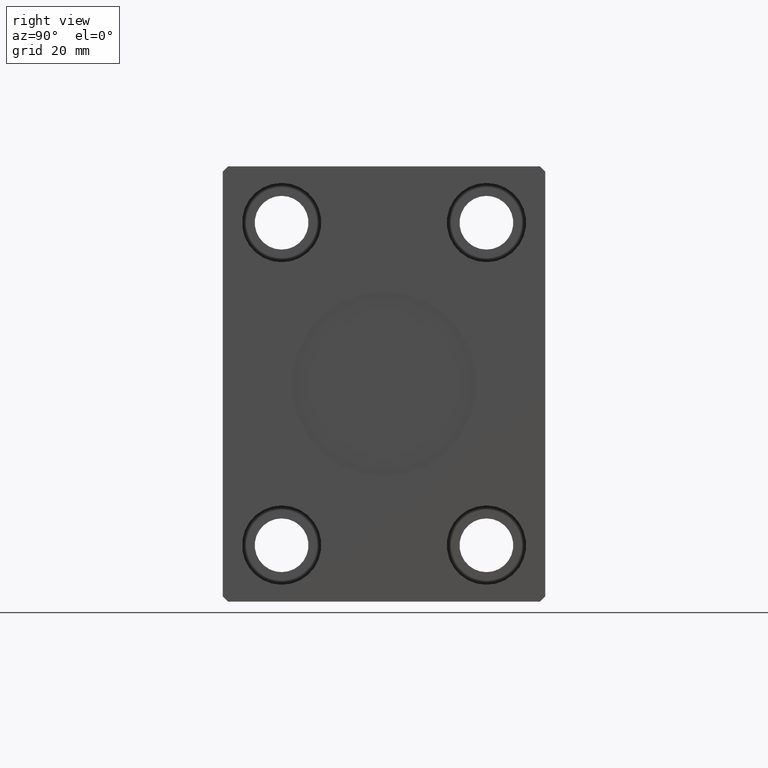
[diagram: clean part render]
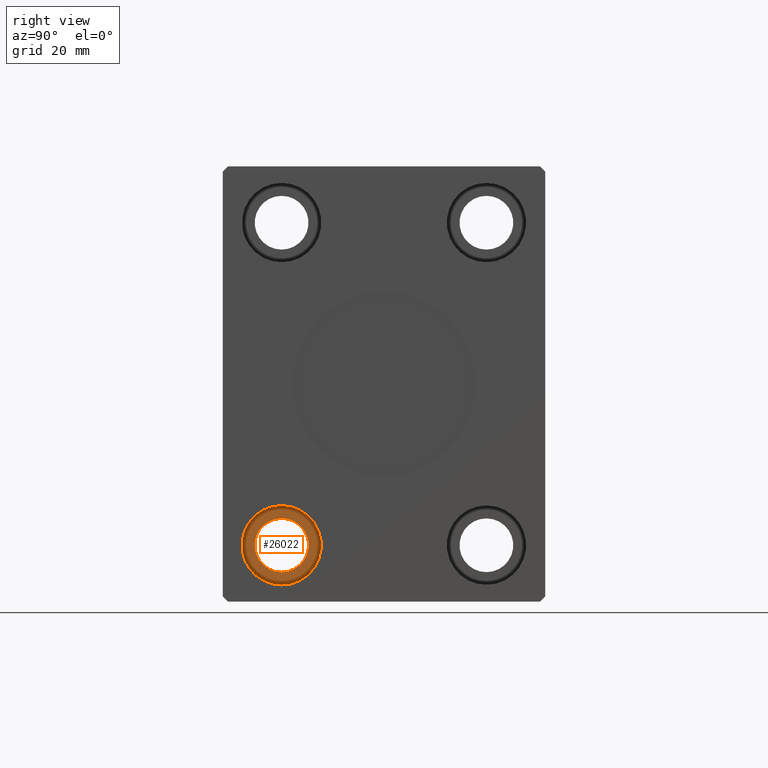
[diagram: same view with one face highlighted and labeled with its STEP entity id]
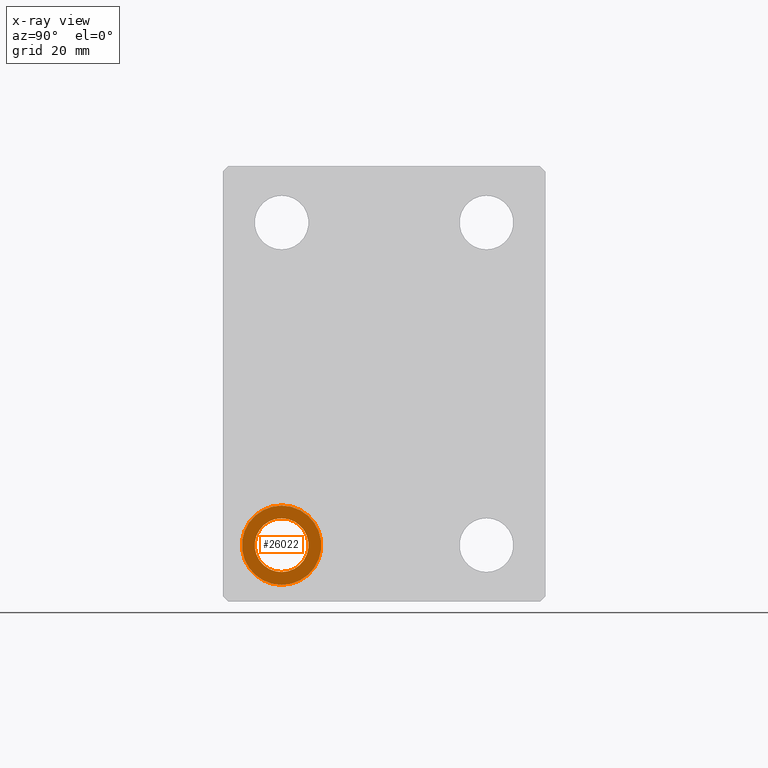
[diagram: x-ray of the same camera — body ghosted, the highlighted face saturated]
A machine part, right view. The second image highlights one B-rep face of the part: STEP entity #26022.
The next image is the same camera in x-ray: the body ghosted, the highlighted face saturated — about 0% of this face is hidden behind the body in this view.
In plain terms, the highlighted planar face has unit normal (-1, 0, 0).
Its self-contained STEP definition (entity closure, byte-faithful):
#660 = DIRECTION ( 'NONE',  ( 1.000000000000000000, -0.000000000000000000, -0.000000000000000000 ) ) ;
#1066 = CARTESIAN_POINT ( 'NONE',  ( 85.67000000000000171, -19.99999999999999645, -31.49999999999998579 ) ) ;
#1141 = VERTEX_POINT ( 'NONE', #29304 ) ;
#1270 = DIRECTION ( 'NONE',  ( -1.000000000000000000, 0.000000000000000000, 0.000000000000000000 ) ) ;
#1698 = DIRECTION ( 'NONE',  ( 0.000000000000000000, 0.000000000000000000, 1.000000000000000000 ) ) ;
#1858 = FACE_OUTER_BOUND ( 'NONE', #25507, .T. ) ;
#2281 = DIRECTION ( 'NONE',  ( -1.000000000000000000, 0.000000000000000000, 0.000000000000000000 ) ) ;
#2702 = CARTESIAN_POINT ( 'NONE',  ( 85.67000000000000171, -19.99999999999999645, -31.49999999999998579 ) ) ;
#3673 = CIRCLE ( 'NONE', #27682, 5.250000000000000888 ) ;
#4132 = EDGE_CURVE ( 'NONE', #1141, #4709, #38568, .T. ) ;
#4709 = VERTEX_POINT ( 'NONE', #33647 ) ;
#6448 = EDGE_CURVE ( 'NONE', #11702, #32974, #3673, .T. ) ;
#6818 = DIRECTION ( 'NONE',  ( -1.000000000000000000, 0.000000000000000000, 0.000000000000000000 ) ) ;
#6878 = CARTESIAN_POINT ( 'NONE',  ( 85.67000000000000171, -19.99999999999999645, -31.49999999999998579 ) ) ;
#7210 = CARTESIAN_POINT ( 'NONE',  ( 85.67000000000000171, -19.99999999999999645, -26.24999999999998579 ) ) ;
#8422 = DIRECTION ( 'NONE',  ( 1.000000000000000000, -0.000000000000000000, -0.000000000000000000 ) ) ;
#9143 = FACE_BOUND ( 'NONE', #37383, .T. ) ;
#10683 = CIRCLE ( 'NONE', #12728, 5.250000000000000888 ) ;
#11231 = EDGE_CURVE ( 'NONE', #4709, #1141, #24706, .T. ) ;
#11702 = VERTEX_POINT ( 'NONE', #7210 ) ;
#12728 = AXIS2_PLACEMENT_3D ( 'NONE', #1066, #1270, #1698 ) ;
#15832 = AXIS2_PLACEMENT_3D ( 'NONE', #6878, #660, #29862 ) ;
#16533 = ORIENTED_EDGE ( 'NONE', *, *, #11231, .T. ) ;
#20652 = ORIENTED_EDGE ( 'NONE', *, *, #6448, .T. ) ;
#22431 = ORIENTED_EDGE ( 'NONE', *, *, #4132, .T. ) ;
#24706 = CIRCLE ( 'NONE', #15832, 7.750000000000000000 ) ;
#25175 = CARTESIAN_POINT ( 'NONE',  ( 85.67000000000000171, -19.99999999999999645, -31.49999999999998579 ) ) ;
#25507 = EDGE_LOOP ( 'NONE', ( #22431, #16533 ) ) ;
#26022 = ADVANCED_FACE ( 'NONE', ( #9143, #1858 ), #32122, .F. ) ;
#26139 = CARTESIAN_POINT ( 'NONE',  ( 85.67000000000000171, -19.99999999999999645, -36.74999999999998579 ) ) ;
#27682 = AXIS2_PLACEMENT_3D ( 'NONE', #29801, #6818, #33027 ) ;
#28611 = ORIENTED_EDGE ( 'NONE', *, *, #36175, .T. ) ;
#29304 = CARTESIAN_POINT ( 'NONE',  ( 85.67000000000000171, -19.99999999999999645, -39.24999999999998579 ) ) ;
#29801 = CARTESIAN_POINT ( 'NONE',  ( 85.67000000000000171, -19.99999999999999645, -31.49999999999998579 ) ) ;
#29862 = DIRECTION ( 'NONE',  ( 0.000000000000000000, 0.000000000000000000, -1.000000000000000000 ) ) ;
#32122 = PLANE ( 'NONE',  #38002 ) ;
#32974 = VERTEX_POINT ( 'NONE', #26139 ) ;
#33027 = DIRECTION ( 'NONE',  ( 0.000000000000000000, 0.000000000000000000, 1.000000000000000000 ) ) ;
#33647 = CARTESIAN_POINT ( 'NONE',  ( 85.67000000000000171, -19.99999999999999645, -23.74999999999998579 ) ) ;
#34510 = DIRECTION ( 'NONE',  ( 0.000000000000000000, 0.000000000000000000, -1.000000000000000000 ) ) ;
#36175 = EDGE_CURVE ( 'NONE', #32974, #11702, #10683, .T. ) ;
#37383 = EDGE_LOOP ( 'NONE', ( #20652, #28611 ) ) ;
#37884 = AXIS2_PLACEMENT_3D ( 'NONE', #25175, #8422, #41518 ) ;
#38002 = AXIS2_PLACEMENT_3D ( 'NONE', #2702, #2281, #34510 ) ;
#38568 = CIRCLE ( 'NONE', #37884, 7.750000000000000000 ) ;
#41518 = DIRECTION ( 'NONE',  ( 0.000000000000000000, 0.000000000000000000, -1.000000000000000000 ) ) ;